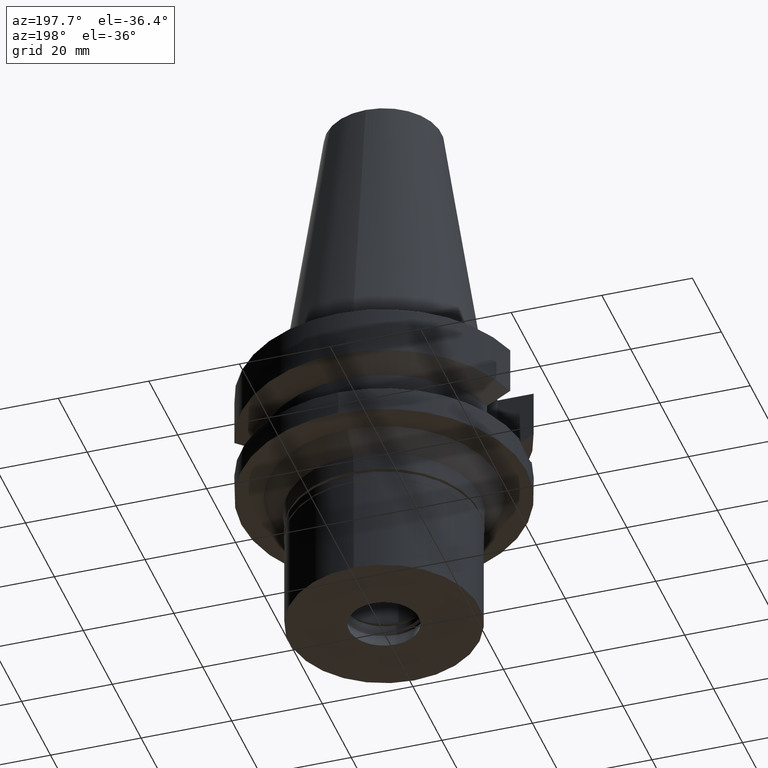
[diagram: clean part render]
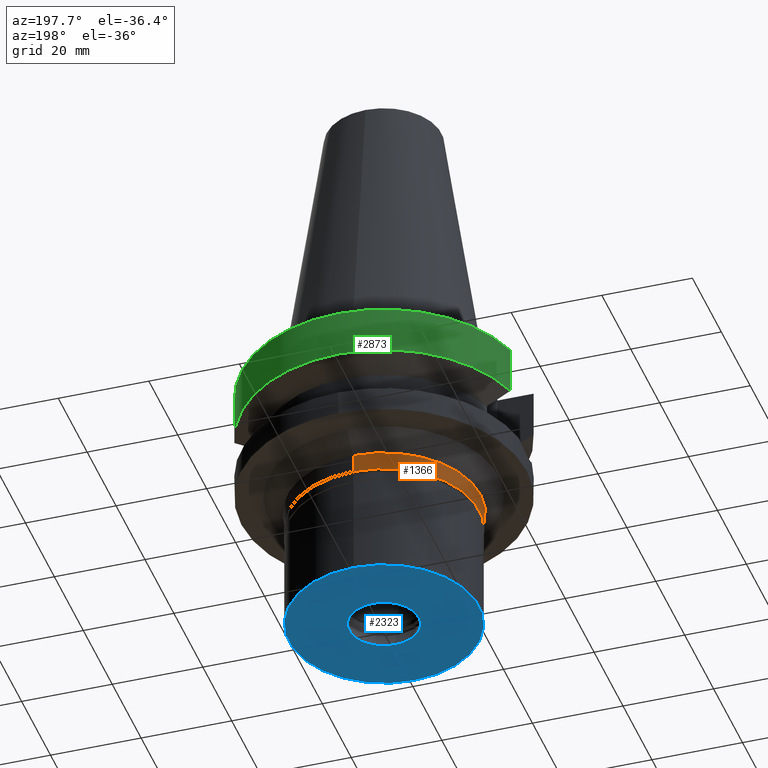
[diagram: same view with three faces highlighted in distinct colors, each labeled with its STEP entity id]
A machine part, auxiliary view with three faces highlighted in distinct colors.
Their STEP definitions:

[orange] entity #1366 — the highlighted conical surface has half-angle 5 deg.
#38 = CARTESIAN_POINT ( 'NONE',  ( 0.0000000000000000000, -21.00000000000000000, -34.89999999999999858 ) ) ;
#56 = CARTESIAN_POINT ( 'NONE',  ( 0.0000000000000000000, 21.34120578774999899, -31.00000000000000000 ) ) ;
#440 = ORIENTED_EDGE ( 'NONE', *, *, #878, .T. ) ;
#500 = DIRECTION ( 'NONE',  ( 0.0000000000000000000, -0.08715574274732774962, -0.9961946980917745220 ) ) ;
#518 = DIRECTION ( 'NONE',  ( 0.0000000000000000000, 1.000000000000000000, 0.0000000000000000000 ) ) ;
#520 = EDGE_CURVE ( 'NONE', #2820, #1220, #2228, .T. ) ;
#521 = CARTESIAN_POINT ( 'NONE',  ( 0.0000000000000000000, 0.0000000000000000000, -31.00000000000000000 ) ) ;
#524 = CARTESIAN_POINT ( 'NONE',  ( 0.0000000000000000000, 0.0000000000000000000, -32.95000000000000284 ) ) ;
#541 = CARTESIAN_POINT ( 'NONE',  ( 0.0000000000000000000, 21.00000000000000000, -34.89999999999999858 ) ) ;
#583 = VECTOR ( 'NONE', #806, 999.9999999999998863 ) ;
#619 = EDGE_LOOP ( 'NONE', ( #440, #1991, #2911, #1966 ) ) ;
#725 = CIRCLE ( 'NONE', #1391, 21.00000000000000000 ) ;
#806 = DIRECTION ( 'NONE',  ( 0.0000000000000000000, 0.08715574274732774962, -0.9961946980917745220 ) ) ;
#861 = VERTEX_POINT ( 'NONE', #56 ) ;
#878 = EDGE_CURVE ( 'NONE', #1388, #1220, #725, .T. ) ;
#902 = CARTESIAN_POINT ( 'NONE',  ( 0.0000000000000000000, -21.34120578774999899, -31.00000000000000000 ) ) ;
#935 = VECTOR ( 'NONE', #500, 999.9999999999998863 ) ;
#969 = AXIS2_PLACEMENT_3D ( 'NONE', #521, #2198, #1472 ) ;
#1017 = CIRCLE ( 'NONE', #969, 21.34120578774999899 ) ;
#1211 = DIRECTION ( 'NONE',  ( 0.0000000000000000000, 1.000000000000000000, 0.0000000000000000000 ) ) ;
#1220 = VERTEX_POINT ( 'NONE', #38 ) ;
#1236 = CONICAL_SURFACE ( 'NONE', #2589, 21.17060289388000172, 0.08726646259969973729 ) ;
#1366 = ADVANCED_FACE ( 'NONE', ( #2233 ), #1236, .T. ) ;
#1388 = VERTEX_POINT ( 'NONE', #541 ) ;
#1391 = AXIS2_PLACEMENT_3D ( 'NONE', #1685, #2880, #518 ) ;
#1472 = DIRECTION ( 'NONE',  ( 0.0000000000000000000, -1.000000000000000000, 0.0000000000000000000 ) ) ;
#1685 = CARTESIAN_POINT ( 'NONE',  ( 0.0000000000000000000, 0.0000000000000000000, -34.89999999999999858 ) ) ;
#1929 = LINE ( 'NONE', #2621, #935 ) ;
#1966 = ORIENTED_EDGE ( 'NONE', *, *, #2154, .T. ) ;
#1991 = ORIENTED_EDGE ( 'NONE', *, *, #520, .F. ) ;
#2154 = EDGE_CURVE ( 'NONE', #861, #1388, #1929, .T. ) ;
#2198 = DIRECTION ( 'NONE',  ( 0.0000000000000000000, 0.0000000000000000000, -1.000000000000000000 ) ) ;
#2228 = LINE ( 'NONE', #2271, #583 ) ;
#2233 = FACE_OUTER_BOUND ( 'NONE', #619, .T. ) ;
#2271 = CARTESIAN_POINT ( 'NONE',  ( 0.0000000000000000000, -21.34120578774999899, -31.00000000000000000 ) ) ;
#2589 = AXIS2_PLACEMENT_3D ( 'NONE', #524, #2928, #1211 ) ;
#2621 = CARTESIAN_POINT ( 'NONE',  ( 0.0000000000000000000, 21.34120578774999899, -31.00000000000000000 ) ) ;
#2820 = VERTEX_POINT ( 'NONE', #902 ) ;
#2880 = DIRECTION ( 'NONE',  ( 0.0000000000000000000, 0.0000000000000000000, 1.000000000000000000 ) ) ;
#2911 = ORIENTED_EDGE ( 'NONE', *, *, #3025, .T. ) ;
#2928 = DIRECTION ( 'NONE',  ( 0.0000000000000000000, 0.0000000000000000000, 1.000000000000000000 ) ) ;
#3025 = EDGE_CURVE ( 'NONE', #2820, #861, #1017, .T. ) ;

[blue] entity #2323 — the highlighted planar face has unit normal (0, 0, -1).
#47 = DIRECTION ( 'NONE',  ( 0.0000000000000000000, 1.000000000000000000, 0.0000000000000000000 ) ) ;
#50 = EDGE_CURVE ( 'NONE', #1155, #1514, #2430, .T. ) ;
#253 = CARTESIAN_POINT ( 'NONE',  ( 0.0000000000000000000, -7.700000000000000178, -24.29999999999999716 ) ) ;
#308 = ORIENTED_EDGE ( 'NONE', *, *, #3006, .F. ) ;
#347 = EDGE_CURVE ( 'NONE', #1514, #1155, #2779, .T. ) ;
#501 = EDGE_CURVE ( 'NONE', #2115, #1569, #2881, .T. ) ;
#523 = ORIENTED_EDGE ( 'NONE', *, *, #501, .F. ) ;
#571 = DIRECTION ( 'NONE',  ( 0.0000000000000000000, -1.000000000000000000, 0.0000000000000000000 ) ) ;
#591 = DIRECTION ( 'NONE',  ( 0.0000000000000000000, 1.000000000000000000, 0.0000000000000000000 ) ) ;
#682 = CARTESIAN_POINT ( 'NONE',  ( 0.0000000000000000000, -21.00000000000000000, -24.29999999999999716 ) ) ;
#733 = ORIENTED_EDGE ( 'NONE', *, *, #347, .F. ) ;
#764 = CIRCLE ( 'NONE', #1968, 21.00000000000000000 ) ;
#779 = DIRECTION ( 'NONE',  ( 0.0000000000000000000, 0.0000000000000000000, 1.000000000000000000 ) ) ;
#812 = CARTESIAN_POINT ( 'NONE',  ( 0.0000000000000000000, 21.00000000000000000, -24.29999999999999716 ) ) ;
#1088 = DIRECTION ( 'NONE',  ( 0.0000000000000000000, 0.0000000000000000000, -1.000000000000000000 ) ) ;
#1155 = VERTEX_POINT ( 'NONE', #253 ) ;
#1196 = CARTESIAN_POINT ( 'NONE',  ( 0.0000000000000000000, 0.0000000000000000000, -24.29999999999999716 ) ) ;
#1323 = CARTESIAN_POINT ( 'NONE',  ( 0.0000000000000000000, 7.700000000000000178, -24.29999999999999716 ) ) ;
#1339 = EDGE_LOOP ( 'NONE', ( #733, #1516 ) ) ;
#1433 = AXIS2_PLACEMENT_3D ( 'NONE', #2966, #1998, #1747 ) ;
#1505 = CARTESIAN_POINT ( 'NONE',  ( 0.0000000000000000000, 0.0000000000000000000, -24.29999999999999716 ) ) ;
#1514 = VERTEX_POINT ( 'NONE', #1323 ) ;
#1516 = ORIENTED_EDGE ( 'NONE', *, *, #50, .F. ) ;
#1569 = VERTEX_POINT ( 'NONE', #812 ) ;
#1620 = AXIS2_PLACEMENT_3D ( 'NONE', #1505, #2680, #571 ) ;
#1747 = DIRECTION ( 'NONE',  ( 0.0000000000000000000, -1.000000000000000000, 0.0000000000000000000 ) ) ;
#1825 = CARTESIAN_POINT ( 'NONE',  ( 0.0000000000000000000, 0.0000000000000000000, -24.29999999999999716 ) ) ;
#1968 = AXIS2_PLACEMENT_3D ( 'NONE', #1196, #779, #47 ) ;
#1998 = DIRECTION ( 'NONE',  ( 0.0000000000000000000, 0.0000000000000000000, 1.000000000000000000 ) ) ;
#2026 = DIRECTION ( 'NONE',  ( 0.0000000000000000000, 0.0000000000000000000, -1.000000000000000000 ) ) ;
#2043 = CARTESIAN_POINT ( 'NONE',  ( 0.0000000000000000000, 0.0000000000000000000, -24.29999999999999716 ) ) ;
#2050 = DIRECTION ( 'NONE',  ( 0.0000000000000000000, -1.000000000000000000, 0.0000000000000000000 ) ) ;
#2075 = EDGE_LOOP ( 'NONE', ( #308, #523 ) ) ;
#2115 = VERTEX_POINT ( 'NONE', #682 ) ;
#2201 = PLANE ( 'NONE',  #1620 ) ;
#2250 = FACE_BOUND ( 'NONE', #1339, .T. ) ;
#2323 = ADVANCED_FACE ( 'NONE', ( #2504, #2250 ), #2201, .T. ) ;
#2430 = CIRCLE ( 'NONE', #2724, 7.700000000000000178 ) ;
#2504 = FACE_OUTER_BOUND ( 'NONE', #2075, .T. ) ;
#2629 = AXIS2_PLACEMENT_3D ( 'NONE', #2043, #2026, #591 ) ;
#2680 = DIRECTION ( 'NONE',  ( 0.0000000000000000000, 0.0000000000000000000, -1.000000000000000000 ) ) ;
#2724 = AXIS2_PLACEMENT_3D ( 'NONE', #1825, #1088, #2050 ) ;
#2779 = CIRCLE ( 'NONE', #2629, 7.700000000000000178 ) ;
#2881 = CIRCLE ( 'NONE', #1433, 21.00000000000000000 ) ;
#2966 = CARTESIAN_POINT ( 'NONE',  ( 0.0000000000000000000, 0.0000000000000000000, -24.29999999999999716 ) ) ;
#3006 = EDGE_CURVE ( 'NONE', #1569, #2115, #764, .T. ) ;

[green] entity #2873 — the highlighted cylindrical surface (partial cylindrical patch) has radius 31.5 mm, axis along (0, 0, -1).
#21 = DIRECTION ( 'NONE',  ( 0.0000000000000000000, 0.0000000000000000000, -1.000000000000000000 ) ) ;
#89 = CARTESIAN_POINT ( 'NONE',  ( -30.45402272279000044, 8.050000000000000711, -1.000000000000000000 ) ) ;
#104 = LINE ( 'NONE', #89, #2029 ) ;
#286 = CARTESIAN_POINT ( 'NONE',  ( 30.45402291909000070, 8.049999257355000992, -11.56551234151000074 ) ) ;
#392 = CARTESIAN_POINT ( 'NONE',  ( -30.45402161871999880, 8.050004176801000000, -11.56546802984000166 ) ) ;
#535 = CIRCLE ( 'NONE', #1340, 31.50000000000000000 ) ;
#536 = EDGE_CURVE ( 'NONE', #907, #1171, #104, .T. ) ;
#674 = AXIS2_PLACEMENT_3D ( 'NONE', #2840, #21, #2125 ) ;
#693 = CYLINDRICAL_SURFACE ( 'NONE', #674, 31.50000000000000000 ) ;
#790 = EDGE_CURVE ( 'NONE', #872, #2138, #2105, .T. ) ;
#872 = VERTEX_POINT ( 'NONE', #286 ) ;
#907 = VERTEX_POINT ( 'NONE', #1215 ) ;
#998 = DIRECTION ( 'NONE',  ( 0.0000000000000000000, 0.0000000000000000000, 1.000000000000000000 ) ) ;
#1171 = VERTEX_POINT ( 'NONE', #392 ) ;
#1185 = ORIENTED_EDGE ( 'NONE', *, *, #790, .F. ) ;
#1215 = CARTESIAN_POINT ( 'NONE',  ( -30.45402272279000044, 8.050000000000000711, -1.000000000000000000 ) ) ;
#1340 = AXIS2_PLACEMENT_3D ( 'NONE', #2660, #998, #1953 ) ;
#1357 = DIRECTION ( 'NONE',  ( -1.857976664457989987E-08, 7.028951066490961268E-08, 0.9999999999999973355 ) ) ;
#1490 = EDGE_CURVE ( 'NONE', #872, #1171, #535, .T. ) ;
#1502 = ORIENTED_EDGE ( 'NONE', *, *, #3059, .T. ) ;
#1522 = AXIS2_PLACEMENT_3D ( 'NONE', #1923, #2186, #1951 ) ;
#1565 = DIRECTION ( 'NONE',  ( 1.044977270136018431E-07, 3.953256906556066407E-07, -0.9999999999999164002 ) ) ;
#1619 = ORIENTED_EDGE ( 'NONE', *, *, #536, .F. ) ;
#1724 = ORIENTED_EDGE ( 'NONE', *, *, #1490, .T. ) ;
#1923 = CARTESIAN_POINT ( 'NONE',  ( 0.0000000000000000000, 2.097758734598999898E-14, -1.000000000000000000 ) ) ;
#1951 = DIRECTION ( 'NONE',  ( 0.0000000000000000000, 1.000000000000000000, 0.0000000000000000000 ) ) ;
#1953 = DIRECTION ( 'NONE',  ( 0.0000000000000000000, 1.000000000000000000, 0.0000000000000000000 ) ) ;
#1974 = VECTOR ( 'NONE', #1357, 1000.000000000000000 ) ;
#2017 = EDGE_LOOP ( 'NONE', ( #1619, #1502, #1185, #1724 ) ) ;
#2029 = VECTOR ( 'NONE', #1565, 1000.000000000000114 ) ;
#2105 = LINE ( 'NONE', #3052, #1974 ) ;
#2117 = CARTESIAN_POINT ( 'NONE',  ( 30.45402272279000044, 8.050000000000000711, -1.000000000000000000 ) ) ;
#2125 = DIRECTION ( 'NONE',  ( 0.0000000000000000000, -1.000000000000000000, 0.0000000000000000000 ) ) ;
#2138 = VERTEX_POINT ( 'NONE', #2117 ) ;
#2186 = DIRECTION ( 'NONE',  ( 0.0000000000000000000, 0.0000000000000000000, -1.000000000000000000 ) ) ;
#2606 = FACE_OUTER_BOUND ( 'NONE', #2017, .T. ) ;
#2660 = CARTESIAN_POINT ( 'NONE',  ( 0.0000000000000000000, 1.065333950388000029E-14, -11.56550565266999975 ) ) ;
#2840 = CARTESIAN_POINT ( 'NONE',  ( 0.0000000000000000000, 2.097758734598999898E-14, 71.29500000000000171 ) ) ;
#2873 = ADVANCED_FACE ( 'NONE', ( #2606 ), #693, .T. ) ;
#2878 = CIRCLE ( 'NONE', #1522, 31.50000000000000000 ) ;
#3052 = CARTESIAN_POINT ( 'NONE',  ( 30.45402291909000070, 8.049999257355000992, -11.56551234151000074 ) ) ;
#3059 = EDGE_CURVE ( 'NONE', #907, #2138, #2878, .T. ) ;